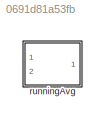
MODEL slx_0691d81a53fb
KIND library
CONFIG AbsTol = auto
CONFIG EnableMultiTasking = off
CONFIG FixedStep = auto
CONFIG MaxStep = auto
CONFIG MinStep = auto
CONFIG RelTol = 1e-3
CONFIG SampleTimeConstraint = Unconstrained
CONFIG SolverName = VariableStepAuto
CONFIG StartTime = 0.0
CONFIG StopTime = 10.0
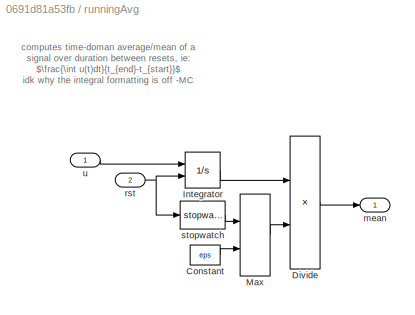
BLOCK [SubSystem] runningAvg
  Ports = [2, 1]
  RequestExecContextInheritance = off
BLOCK [Constant] runningAvg/Constant
  Value = eps
BLOCK [Product] runningAvg/Divide
  Inputs = */
  Ports = [2, 1]
BLOCK [Integrator] runningAvg/Integrator
  ExternalReset = rising
  Ports = [2, 1]
BLOCK [MinMax] runningAvg/Max
  Function = max
  Inputs = 2
  Ports = [2, 1]
BLOCK [Outport] runningAvg/mean
  VectorParamsAs1DForOutWhenUnconnected = off
BLOCK [Inport] runningAvg/rst
  Port = 2
BLOCK [Reference] runningAvg/stopwatch  REF=stopwatch_ul/stopwatch  (lib defined in slx_5231e8830116, slx_6b86a6863970)
  Ports = [1, 1]
  SourceBlock = stopwatch_ul/stopwatch
  SourceType = SubSystem
BLOCK [Inport] runningAvg/u
ANNOTATION runningAvg: computes time-doman average/mean of a signal over duration between resets, ie: $\frac{\int u(t)dt}{t_{end}-t_{start}}$ idk why the integral formatting is off -MC
LINE runningAvg/Constant:1 -> runningAvg/Max:2
LINE runningAvg/Divide:1 -> runningAvg/mean:1
LINE runningAvg/Integrator:1 -> runningAvg/Divide:1
LINE runningAvg/Max:1 -> runningAvg/Divide:2
NET runningAvg/rst:1 -> runningAvg/Integrator:2, runningAvg/stopwatch:1
LINE runningAvg/stopwatch:1 -> runningAvg/Max:1
LINE runningAvg/u:1 -> runningAvg/Integrator:1
note: NET lines group one-source signal fan-out (src -> all destinations, sorted); 1:1 wires keep LINE
